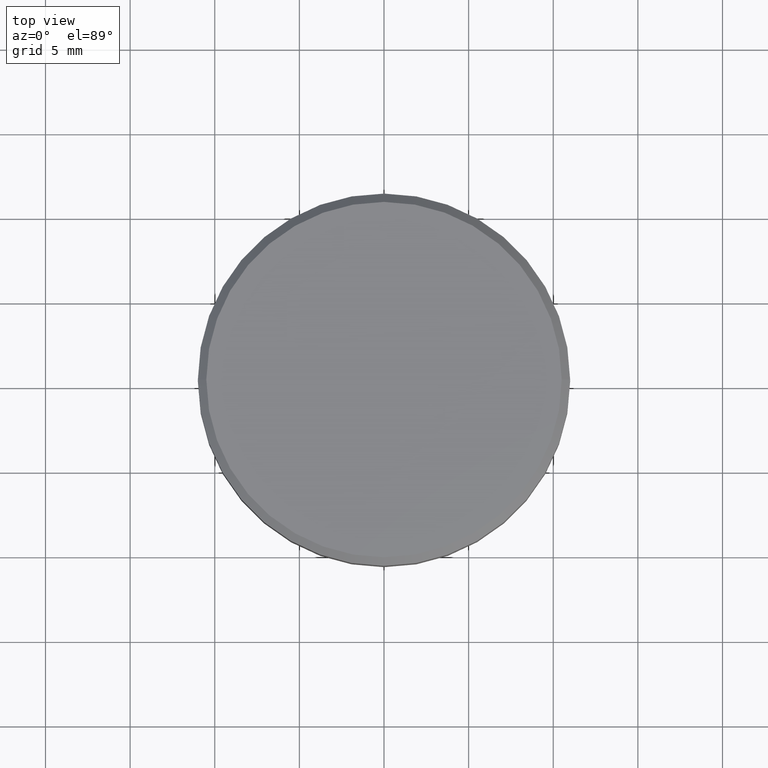
[diagram: clean part render]
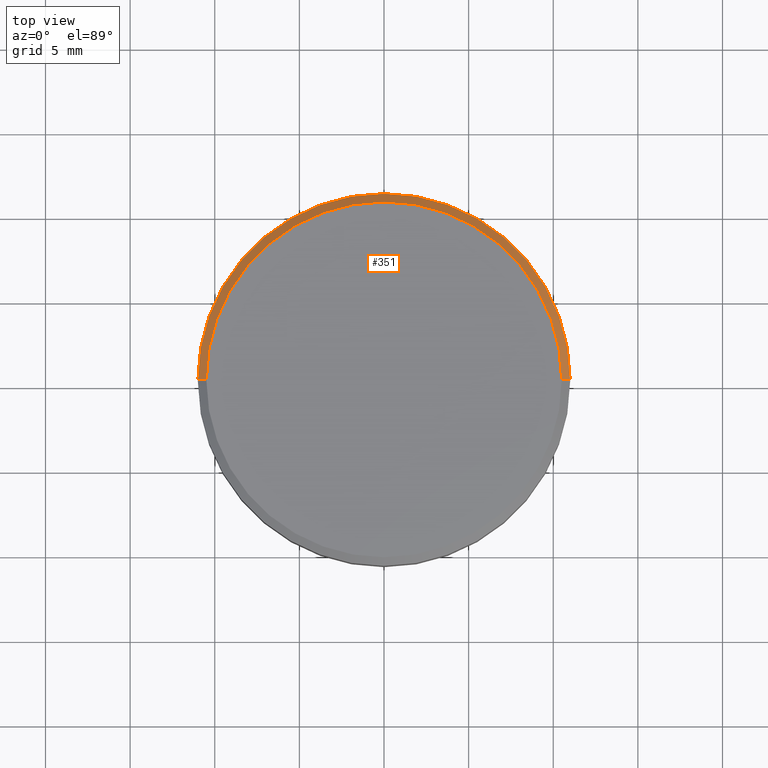
[diagram: same view with one face highlighted and labeled with its STEP entity id]
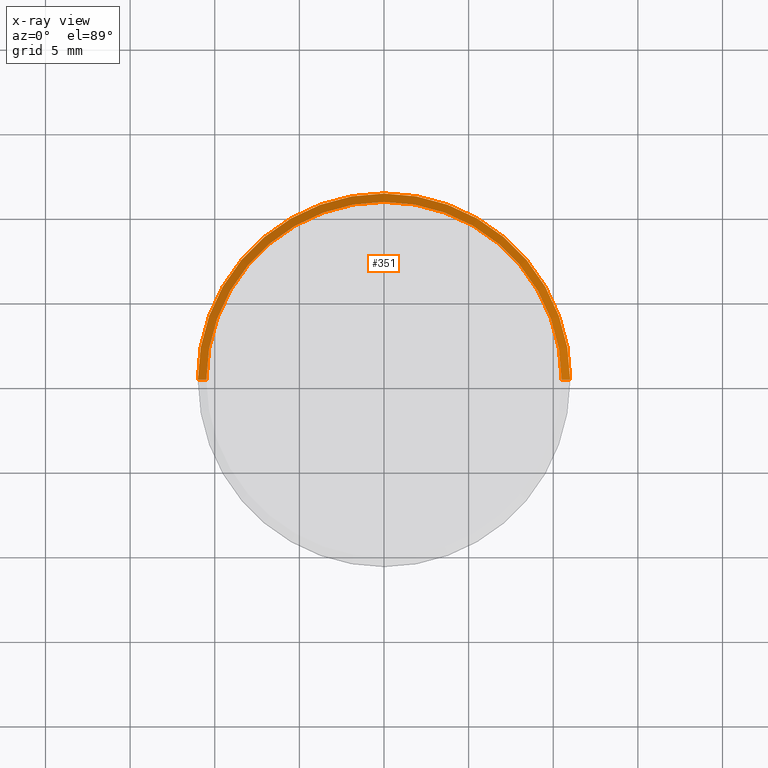
[diagram: x-ray of the same camera — body ghosted, the highlighted face saturated]
A machine part, top view. The second image highlights one B-rep face of the part: STEP entity #351.
The next image is the same camera in x-ray: the body ghosted, the highlighted face saturated — about 0% of this face is hidden behind the body in this view.
In plain terms, the highlighted conical surface has half-angle 45 deg.
Its self-contained STEP definition (entity closure, byte-faithful):
#3 = CARTESIAN_POINT ( 'NONE',  ( 10.49999999999999467, 1.285879139104720239E-15, 0.000000000000000000 ) ) ;
#16 = CONICAL_SURFACE ( 'NONE', #108, 10.49999999999999467, 0.7853981633974412846 ) ;
#25 = FACE_OUTER_BOUND ( 'NONE', #367, .T. ) ;
#45 = DIRECTION ( 'NONE',  ( -0.000000000000000000, -0.000000000000000000, 1.000000000000000000 ) ) ;
#50 = VECTOR ( 'NONE', #330, 999.9999999999998863 ) ;
#63 = VERTEX_POINT ( 'NONE', #104 ) ;
#64 = LINE ( 'NONE', #3, #78 ) ;
#78 = VECTOR ( 'NONE', #103, 999.9999999999998863 ) ;
#82 = EDGE_CURVE ( 'NONE', #156, #159, #341, .T. ) ;
#85 = DIRECTION ( 'NONE',  ( -1.000000000000000000, 0.000000000000000000, 0.000000000000000000 ) ) ;
#103 = DIRECTION ( 'NONE',  ( 0.7071067811865425767, 8.659560562354873694E-17, -0.7071067811865525687 ) ) ;
#104 = CARTESIAN_POINT ( 'NONE',  ( -11.00000000000000178, 1.347111479062088602E-15, -0.5000000000000125455 ) ) ;
#108 = AXIS2_PLACEMENT_3D ( 'NONE', #149, #121, #85 ) ;
#121 = DIRECTION ( 'NONE',  ( 0.000000000000000000, 0.000000000000000000, -1.000000000000000000 ) ) ;
#132 = EDGE_CURVE ( 'NONE', #156, #294, #64, .T. ) ;
#149 = CARTESIAN_POINT ( 'NONE',  ( 0.000000000000000000, 0.000000000000000000, 0.000000000000000000 ) ) ;
#156 = VERTEX_POINT ( 'NONE', #353 ) ;
#157 = AXIS2_PLACEMENT_3D ( 'NONE', #229, #45, #173 ) ;
#159 = VERTEX_POINT ( 'NONE', #198 ) ;
#166 = ORIENTED_EDGE ( 'NONE', *, *, #132, .T. ) ;
#173 = DIRECTION ( 'NONE',  ( 1.000000000000000000, 0.000000000000000000, 0.000000000000000000 ) ) ;
#180 = DIRECTION ( 'NONE',  ( 0.000000000000000000, 0.000000000000000000, -1.000000000000000000 ) ) ;
#198 = CARTESIAN_POINT ( 'NONE',  ( -10.49999999999999467, 0.000000000000000000, 0.000000000000000000 ) ) ;
#206 = CARTESIAN_POINT ( 'NONE',  ( 0.000000000000000000, 0.000000000000000000, -0.5000000000000125455 ) ) ;
#209 = AXIS2_PLACEMENT_3D ( 'NONE', #206, #180, #273 ) ;
#211 = CARTESIAN_POINT ( 'NONE',  ( -10.49999999999999467, 0.000000000000000000, 0.000000000000000000 ) ) ;
#217 = CARTESIAN_POINT ( 'NONE',  ( 11.00000000000000178, 0.000000000000000000, -0.5000000000000125455 ) ) ;
#229 = CARTESIAN_POINT ( 'NONE',  ( 0.000000000000000000, 0.000000000000000000, 0.000000000000000000 ) ) ;
#240 = EDGE_CURVE ( 'NONE', #63, #294, #377, .T. ) ;
#273 = DIRECTION ( 'NONE',  ( 1.000000000000000000, 0.000000000000000000, 0.000000000000000000 ) ) ;
#280 = ORIENTED_EDGE ( 'NONE', *, *, #382, .F. ) ;
#294 = VERTEX_POINT ( 'NONE', #217 ) ;
#330 = DIRECTION ( 'NONE',  ( -0.7071067811865425767, 0.000000000000000000, -0.7071067811865525687 ) ) ;
#335 = ORIENTED_EDGE ( 'NONE', *, *, #240, .F. ) ;
#341 = CIRCLE ( 'NONE', #157, 10.49999999999999467 ) ;
#351 = ADVANCED_FACE ( 'NONE', ( #25 ), #16, .T. ) ;
#353 = CARTESIAN_POINT ( 'NONE',  ( 10.49999999999999467, 1.316495309083404420E-15, 0.000000000000000000 ) ) ;
#357 = LINE ( 'NONE', #211, #50 ) ;
#367 = EDGE_LOOP ( 'NONE', ( #369, #166, #335, #280 ) ) ;
#369 = ORIENTED_EDGE ( 'NONE', *, *, #82, .F. ) ;
#377 = CIRCLE ( 'NONE', #209, 11.00000000000000178 ) ;
#382 = EDGE_CURVE ( 'NONE', #159, #63, #357, .T. ) ;